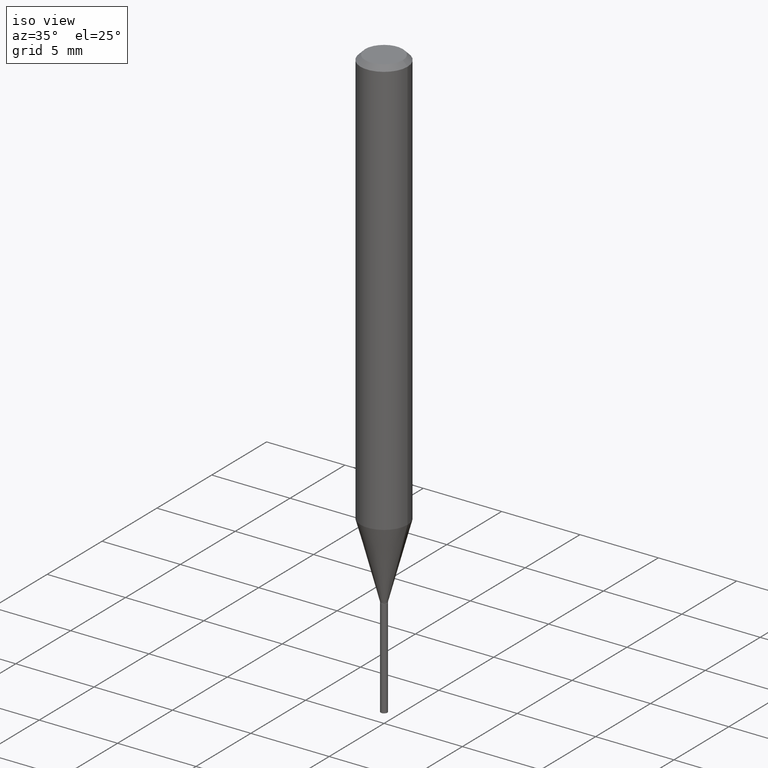
[diagram: clean part render]
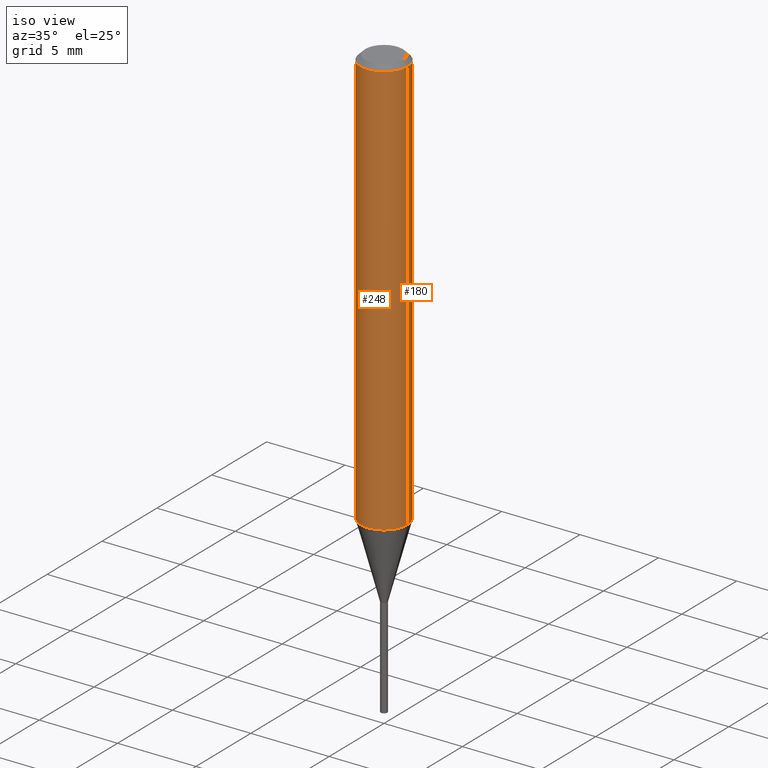
[diagram: same view with one multi-face feature highlighted, each face labeled with its STEP entity id]
A machine part, iso view. The highlighted faces form ONE feature: a constant-radius fillet chain: 2 tangent blend faces with common blend radius 1.4999 mm. The faces share edges in the B-rep.
Their STEP definitions:
[1] entity #248 (Cylinder):
#3 = EDGE_CURVE ( 'NONE', #97, #46, #389, .T. ) ;
#5 = FACE_OUTER_BOUND ( 'NONE', #148, .T. ) ;
#10 = CARTESIAN_POINT ( 'NONE',  ( 0.05905000000000013710, -4.085423580312769324E-15, -1.052011818975500779 ) ) ;
#37 = AXIS2_PLACEMENT_3D ( 'NONE', #302, #419, #232 ) ;
#39 = EDGE_CURVE ( 'NONE', #276, #46, #170, .T. ) ;
#45 = DIRECTION ( 'NONE',  ( -2.445468806185136877E-29, 3.491481338843145188E-15, 1.000000000000000000 ) ) ;
#46 = VERTEX_POINT ( 'NONE', #315 ) ;
#58 = ORIENTED_EDGE ( 'NONE', *, *, #274, .F. ) ;
#63 = DIRECTION ( 'NONE',  ( -2.445468806185136877E-29, 3.491481338843145188E-15, 1.000000000000000000 ) ) ;
#74 = CARTESIAN_POINT ( 'NONE',  ( 2.572662087042671903E-29, -3.673079634195394404E-15, -1.052011818975500779 ) ) ;
#97 = VERTEX_POINT ( 'NONE', #214 ) ;
#148 = EDGE_LOOP ( 'NONE', ( #58, #425, #176, #393 ) ) ;
#166 = CIRCLE ( 'NONE', #463, 0.05905000000000013710 ) ;
#170 = LINE ( 'NONE', #385, #269 ) ;
#176 = ORIENTED_EDGE ( 'NONE', *, *, #39, .T. ) ;
#192 = DIRECTION ( 'NONE',  ( 1.000000000000000000, -6.982962677686264344E-15, 0.000000000000000000 ) ) ;
#195 = AXIS2_PLACEMENT_3D ( 'NONE', #384, #312, #466 ) ;
#214 = CARTESIAN_POINT ( 'NONE',  ( -0.05904999999999999832, -1.437581528937225982E-15, -0.01181000000000007218 ) ) ;
#232 = DIRECTION ( 'NONE',  ( 1.000000000000000000, -6.982962677686266711E-15, 4.876176775795936353E-29 ) ) ;
#248 = ADVANCED_FACE ( 'NONE', ( #5 ), #264, .T. ) ;
#262 = LINE ( 'NONE', #372, #285 ) ;
#264 = CYLINDRICAL_SURFACE ( 'NONE', #37, 0.05905000000000006771 ) ;
#269 = VECTOR ( 'NONE', #63, 39.37007874015748143 ) ;
#274 = EDGE_CURVE ( 'NONE', #462, #97, #262, .T. ) ;
#276 = VERTEX_POINT ( 'NONE', #10 ) ;
#285 = VECTOR ( 'NONE', #45, 39.37007874015748143 ) ;
#302 = CARTESIAN_POINT ( 'NONE',  ( 0.000000000000000000, 0.000000000000000000, 0.000000000000000000 ) ) ;
#312 = DIRECTION ( 'NONE',  ( -2.445468806185136597E-29, 3.491481338843145583E-15, 1.000000000000000000 ) ) ;
#315 = CARTESIAN_POINT ( 'NONE',  ( 0.05904999999999999832, -4.535783407291118600E-16, -0.01181000000000007218 ) ) ;
#328 = EDGE_CURVE ( 'NONE', #462, #276, #166, .T. ) ;
#372 = CARTESIAN_POINT ( 'NONE',  ( -0.05905000000000006771, 4.195754854663396409E-16, -2.904631170795525045E-30 ) ) ;
#384 = CARTESIAN_POINT ( 'NONE',  ( 2.888098660104664204E-31, -4.123439461173780263E-17, -0.01181000000000007218 ) ) ;
#385 = CARTESIAN_POINT ( 'NONE',  ( 0.05905000000000006771, -4.123439461173745257E-16, 2.879382386107503723E-30 ) ) ;
#389 = CIRCLE ( 'NONE', #195, 0.05904999999999999832 ) ;
#393 = ORIENTED_EDGE ( 'NONE', *, *, #3, .F. ) ;
#416 = DIRECTION ( 'NONE',  ( -2.445468806185136597E-29, 3.491481338843145583E-15, 1.000000000000000000 ) ) ;
#419 = DIRECTION ( 'NONE',  ( -2.445468806185136597E-29, 3.491481338843145583E-15, 1.000000000000000000 ) ) ;
#425 = ORIENTED_EDGE ( 'NONE', *, *, #328, .T. ) ;
#460 = CARTESIAN_POINT ( 'NONE',  ( -0.05905000000000013710, -3.253504148729054517E-15, -1.052011818975500779 ) ) ;
#462 = VERTEX_POINT ( 'NONE', #460 ) ;
#463 = AXIS2_PLACEMENT_3D ( 'NONE', #74, #416, #192 ) ;
#466 = DIRECTION ( 'NONE',  ( 1.000000000000000000, -6.982962677686266711E-15, 0.000000000000000000 ) ) ;
[2] entity #180 (Cylinder):
#4 = CARTESIAN_POINT ( 'NONE',  ( 2.888098660104664204E-31, -4.123439461173780263E-17, -0.01181000000000007218 ) ) ;
#10 = CARTESIAN_POINT ( 'NONE',  ( 0.05905000000000013710, -4.085423580312769324E-15, -1.052011818975500779 ) ) ;
#11 = ORIENTED_EDGE ( 'NONE', *, *, #454, .T. ) ;
#39 = EDGE_CURVE ( 'NONE', #276, #46, #170, .T. ) ;
#45 = DIRECTION ( 'NONE',  ( -2.445468806185136877E-29, 3.491481338843145188E-15, 1.000000000000000000 ) ) ;
#46 = VERTEX_POINT ( 'NONE', #315 ) ;
#63 = DIRECTION ( 'NONE',  ( -2.445468806185136877E-29, 3.491481338843145188E-15, 1.000000000000000000 ) ) ;
#78 = DIRECTION ( 'NONE',  ( -2.445468806185136597E-29, 3.491481338843145583E-15, 1.000000000000000000 ) ) ;
#91 = DIRECTION ( 'NONE',  ( -2.445468806185136597E-29, 3.491481338843145583E-15, 1.000000000000000000 ) ) ;
#96 = EDGE_LOOP ( 'NONE', ( #11, #353, #251, #105 ) ) ;
#97 = VERTEX_POINT ( 'NONE', #214 ) ;
#104 = CIRCLE ( 'NONE', #411, 0.05905000000000013710 ) ;
#105 = ORIENTED_EDGE ( 'NONE', *, *, #39, .F. ) ;
#117 = AXIS2_PLACEMENT_3D ( 'NONE', #227, #198, #224 ) ;
#170 = LINE ( 'NONE', #385, #269 ) ;
#180 = ADVANCED_FACE ( 'NONE', ( #260 ), #265, .T. ) ;
#189 = DIRECTION ( 'NONE',  ( 1.000000000000000000, -6.982962677686266711E-15, 0.000000000000000000 ) ) ;
#198 = DIRECTION ( 'NONE',  ( -2.445468806185136597E-29, 3.491481338843145583E-15, 1.000000000000000000 ) ) ;
#214 = CARTESIAN_POINT ( 'NONE',  ( -0.05904999999999999832, -1.437581528937225982E-15, -0.01181000000000007218 ) ) ;
#224 = DIRECTION ( 'NONE',  ( 1.000000000000000000, -6.982962677686266711E-15, 4.876176775795936353E-29 ) ) ;
#227 = CARTESIAN_POINT ( 'NONE',  ( 0.000000000000000000, 0.000000000000000000, 0.000000000000000000 ) ) ;
#234 = DIRECTION ( 'NONE',  ( 1.000000000000000000, -6.982962677686264344E-15, 0.000000000000000000 ) ) ;
#240 = AXIS2_PLACEMENT_3D ( 'NONE', #4, #78, #189 ) ;
#251 = ORIENTED_EDGE ( 'NONE', *, *, #343, .F. ) ;
#260 = FACE_OUTER_BOUND ( 'NONE', #96, .T. ) ;
#262 = LINE ( 'NONE', #372, #285 ) ;
#265 = CYLINDRICAL_SURFACE ( 'NONE', #117, 0.05905000000000006771 ) ;
#269 = VECTOR ( 'NONE', #63, 39.37007874015748143 ) ;
#274 = EDGE_CURVE ( 'NONE', #462, #97, #262, .T. ) ;
#276 = VERTEX_POINT ( 'NONE', #10 ) ;
#285 = VECTOR ( 'NONE', #45, 39.37007874015748143 ) ;
#304 = CARTESIAN_POINT ( 'NONE',  ( 2.572662087042671903E-29, -3.673079634195394404E-15, -1.052011818975500779 ) ) ;
#315 = CARTESIAN_POINT ( 'NONE',  ( 0.05904999999999999832, -4.535783407291118600E-16, -0.01181000000000007218 ) ) ;
#343 = EDGE_CURVE ( 'NONE', #46, #97, #358, .T. ) ;
#353 = ORIENTED_EDGE ( 'NONE', *, *, #274, .T. ) ;
#358 = CIRCLE ( 'NONE', #240, 0.05904999999999999832 ) ;
#372 = CARTESIAN_POINT ( 'NONE',  ( -0.05905000000000006771, 4.195754854663396409E-16, -2.904631170795525045E-30 ) ) ;
#385 = CARTESIAN_POINT ( 'NONE',  ( 0.05905000000000006771, -4.123439461173745257E-16, 2.879382386107503723E-30 ) ) ;
#411 = AXIS2_PLACEMENT_3D ( 'NONE', #304, #91, #234 ) ;
#454 = EDGE_CURVE ( 'NONE', #276, #462, #104, .T. ) ;
#460 = CARTESIAN_POINT ( 'NONE',  ( -0.05905000000000013710, -3.253504148729054517E-15, -1.052011818975500779 ) ) ;
#462 = VERTEX_POINT ( 'NONE', #460 ) ;